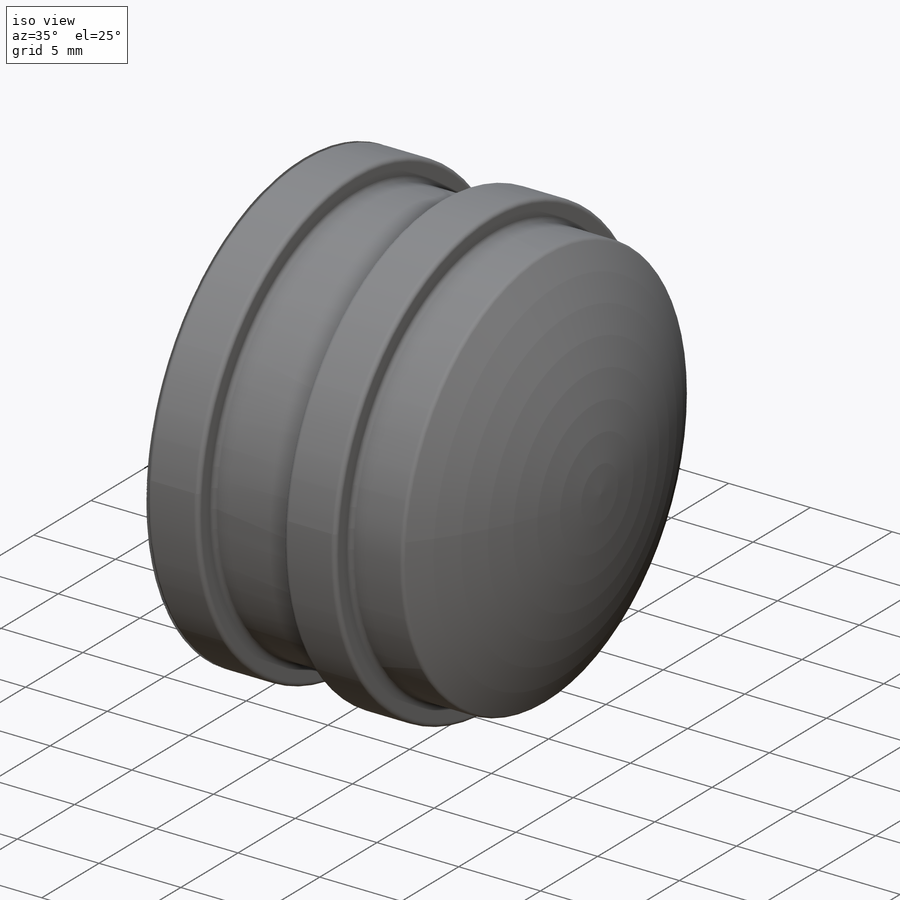
[diagram: iso view]
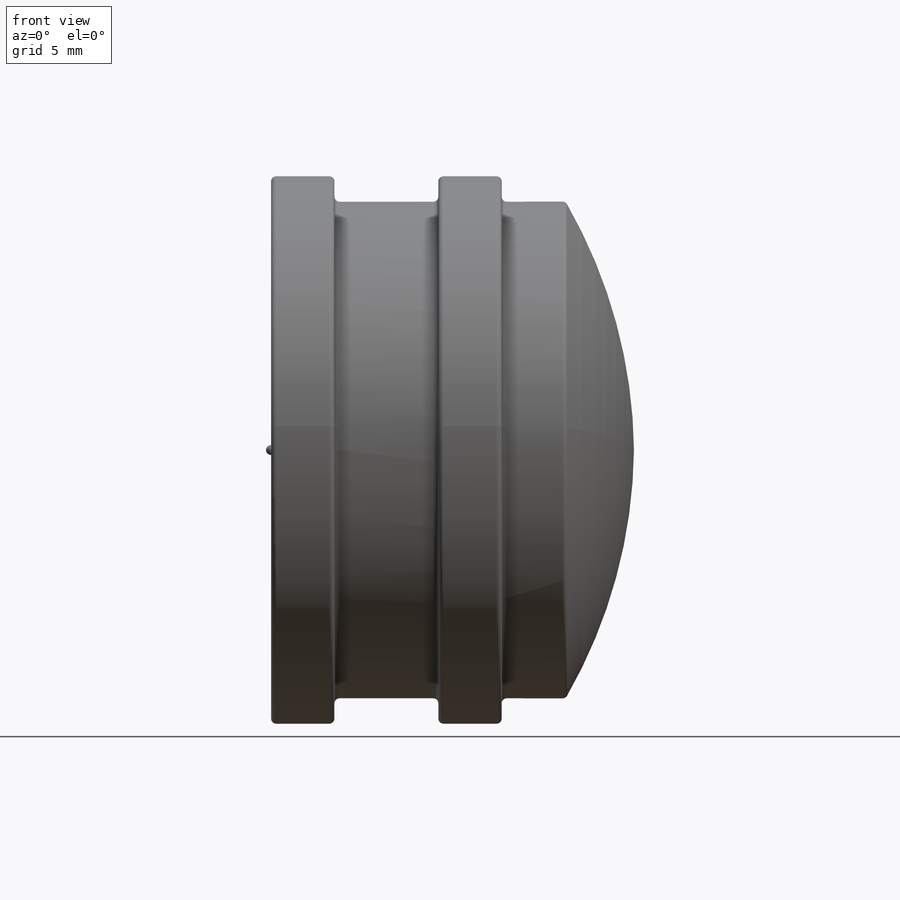
[diagram: front view]
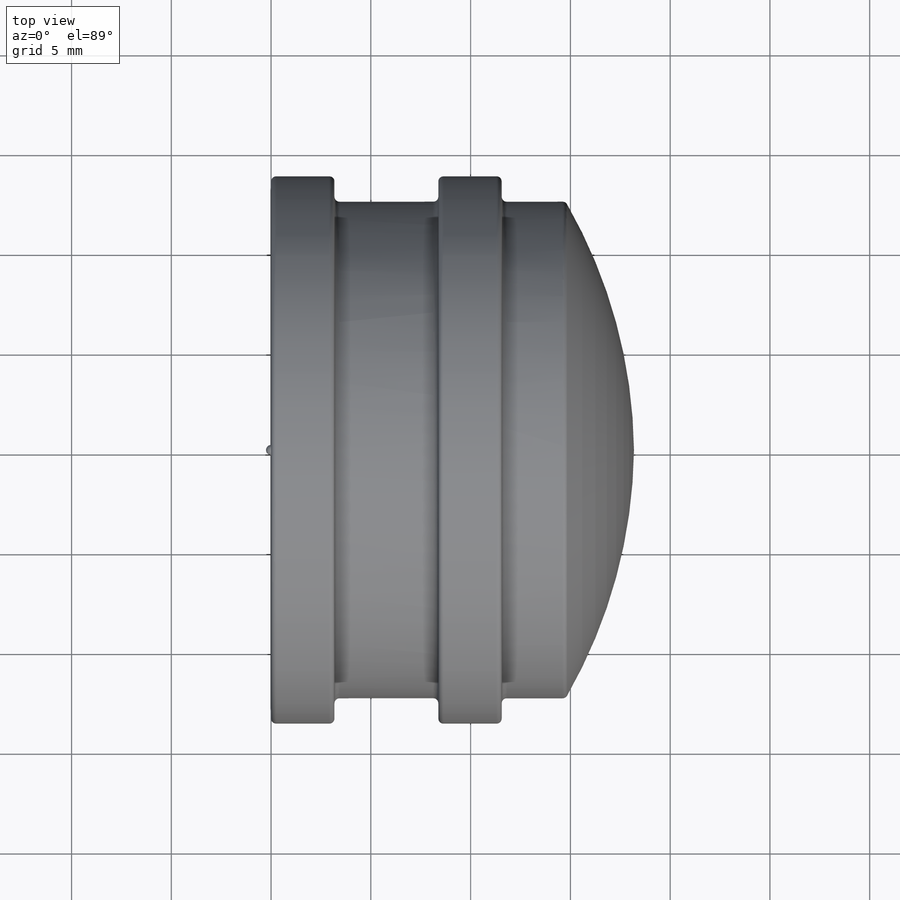
[diagram: top view]
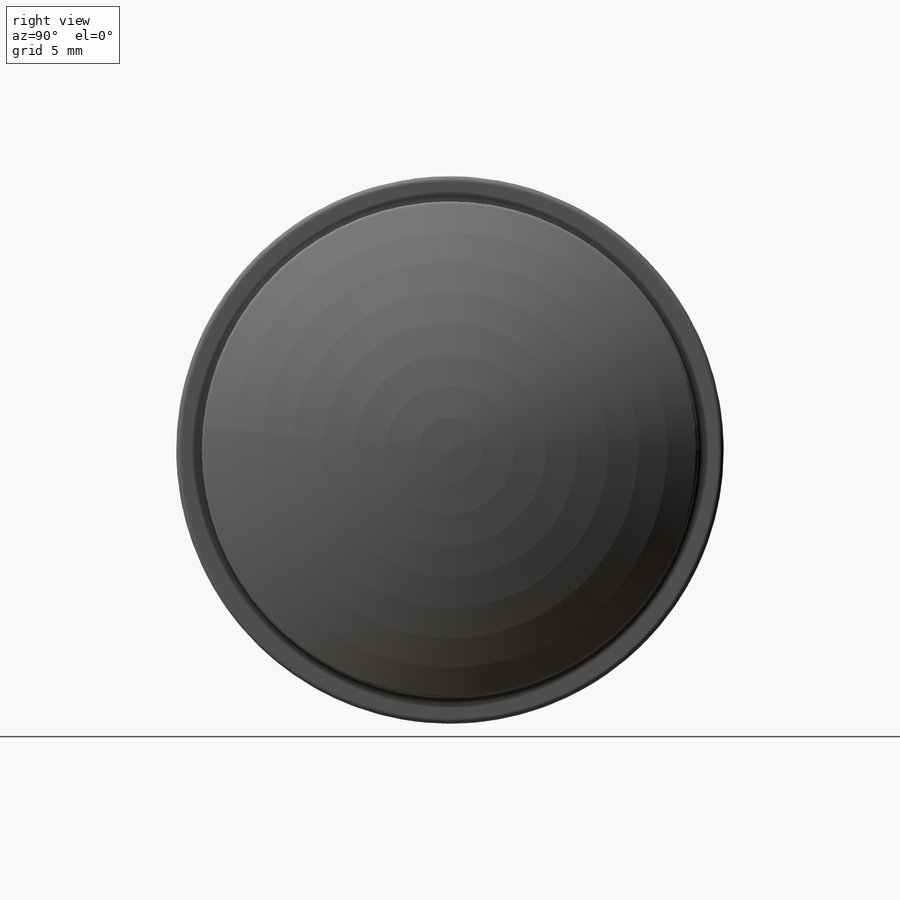
[diagram: right view]
SOLIDWORKS PART (.sldprt)
format: sldprt  version: not decoded by parser v0  size: 775,168 bytes
history: native  units: mm
features: fillet x3, sketch x2, material x1, revolve x1, cut_extrude x1 (+13 scaffold rows collapsed)
feature tree (21):
  scaffold x13  (default folders/planes/origin — collapsed)
  material  "ABS"
  sketch  "Sketch2"  dims[c1.D7=25.4mm c1.D8=25.4mm c1.D1=5.207mm c1.D2=3.2004mm c1.D3=12.446mm c1.D4=1.27mm c1.D5=~19.093242mm c1.D6=3.175mm c2.D7=~7.460042mm c2.D5=18.1864mm]
  revolve  "Revolve1"  Angle=360deg
  fillet  "Fillet1"  Radius=0.254mm
  sketch  "Sketch3"  dims[c1.D1=5.08mm c1.D2=4.572mm c1.D3=7.112mm c1.D5=7.112mm c2.D5=45.0deg c2.D4=8.0]
  cut_extrude  "Cut-Extrude1"  Depth=6.35mm
  fillet  "Fillet2"  Radius=1.27mm
  fillet  "Fillet3"  Radius=0.254mm
decode coverage: 7 of 7 modeling features carry decoded parameters
note: ~ marks probable driven/reference dimensions
note: suppression state not decoded; provenance and decode notes live in map.json
